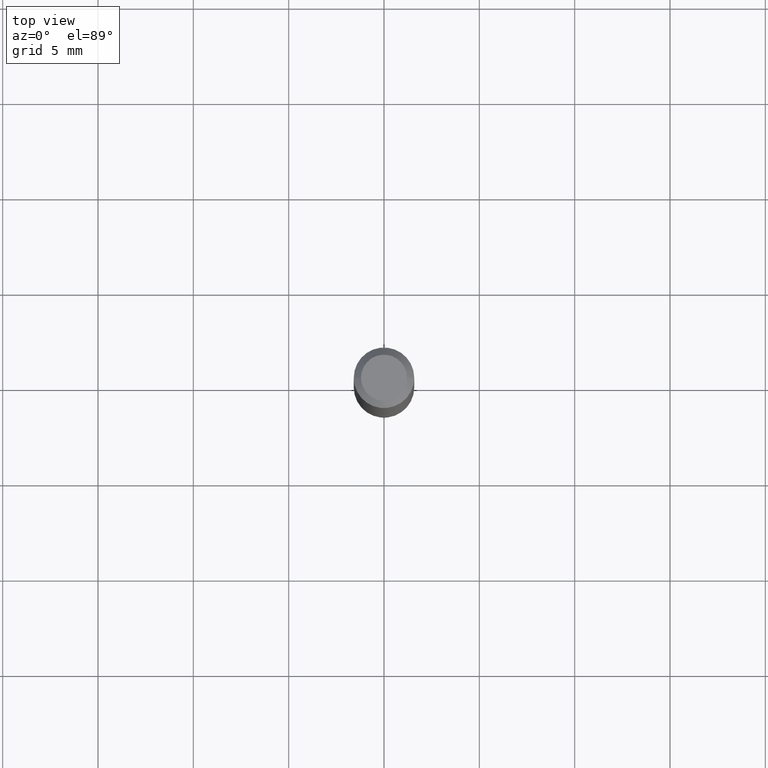
[diagram: clean part render]
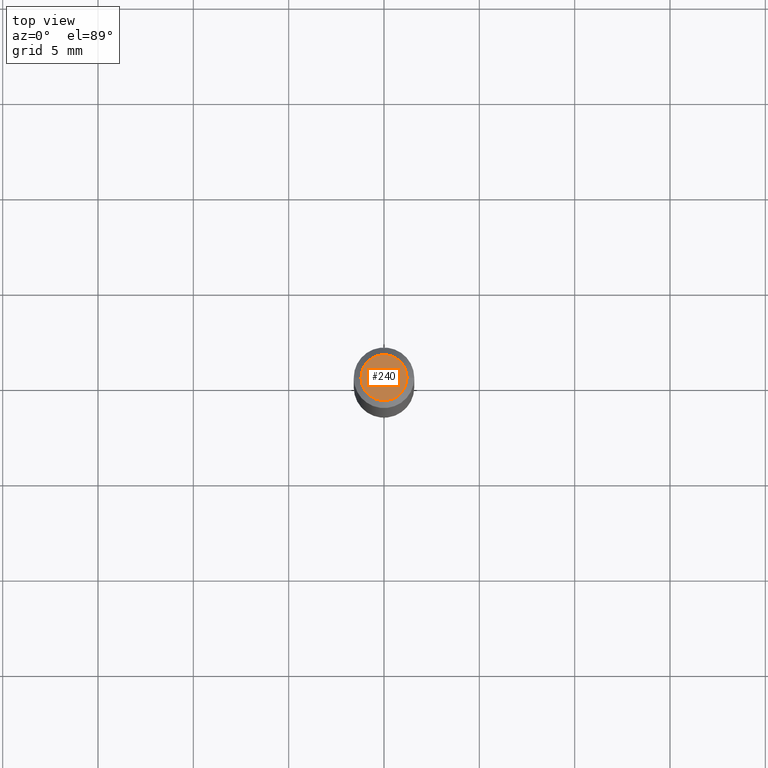
[diagram: same view with one face highlighted and labeled with its STEP entity id]
A machine part, top view. The second image highlights one B-rep face of the part: STEP entity #240.
In plain terms, the highlighted planar face has unit normal (0, -0, -1).
Its self-contained STEP definition (entity closure, byte-faithful):
#1 = EDGE_CURVE ( 'NONE', #264, #388, #477, .T. ) ;
#10 = EDGE_LOOP ( 'NONE', ( #348, #248 ) ) ;
#23 = DIRECTION ( 'NONE',  ( 2.438088387897960049E-29, -3.491481338843145188E-15, -1.000000000000000000 ) ) ;
#31 = CIRCLE ( 'NONE', #395, 0.04750000000000000749 ) ;
#34 = CARTESIAN_POINT ( 'NONE',  ( 3.316907271900976589E-16, 0.04750000000000000749, -2.925296391183627249E-17 ) ) ;
#87 = AXIS2_PLACEMENT_3D ( 'NONE', #34, #23, #185 ) ;
#111 = CARTESIAN_POINT ( 'NONE',  ( 0.04750000000000000749, -4.035134999187568762E-16, 2.731847993664288856E-16 ) ) ;
#133 = AXIS2_PLACEMENT_3D ( 'NONE', #246, #166, #360 ) ;
#155 = DIRECTION ( 'NONE',  ( -2.445468806185136597E-29, 3.491481338843145583E-15, 1.000000000000000000 ) ) ;
#166 = DIRECTION ( 'NONE',  ( -2.445468806185136597E-29, 3.491481338843145583E-15, 1.000000000000000000 ) ) ;
#185 = DIRECTION ( 'NONE',  ( -1.000000000000000000, 6.982962677686265922E-15, -4.876176775795935793E-29 ) ) ;
#234 = CARTESIAN_POINT ( 'NONE',  ( -6.680649051745406845E-45, 9.538196290434862081E-31, 2.731847993664263218E-16 ) ) ;
#240 = ADVANCED_FACE ( 'NONE', ( #464 ), #462, .F. ) ;
#246 = CARTESIAN_POINT ( 'NONE',  ( -6.680649051745406845E-45, 9.538196290434862081E-31, 2.731847993664263218E-16 ) ) ;
#248 = ORIENTED_EDGE ( 'NONE', *, *, #1, .T. ) ;
#264 = VERTEX_POINT ( 'NONE', #111 ) ;
#348 = ORIENTED_EDGE ( 'NONE', *, *, #376, .T. ) ;
#360 = DIRECTION ( 'NONE',  ( 1.000000000000000000, -6.982962677686266711E-15, 4.852736867747365086E-29 ) ) ;
#376 = EDGE_CURVE ( 'NONE', #388, #264, #31, .T. ) ;
#383 = DIRECTION ( 'NONE',  ( 1.000000000000000000, -6.982962677686266711E-15, 4.852736867747365086E-29 ) ) ;
#388 = VERTEX_POINT ( 'NONE', #515 ) ;
#395 = AXIS2_PLACEMENT_3D ( 'NONE', #234, #155, #383 ) ;
#462 = PLANE ( 'NONE',  #87 ) ;
#464 = FACE_OUTER_BOUND ( 'NONE', #10, .T. ) ;
#477 = CIRCLE ( 'NONE', #133, 0.04750000000000000749 ) ;
#515 = CARTESIAN_POINT ( 'NONE',  ( -0.04750000000000000749, 3.578768372314221353E-16, 2.731847993664239060E-16 ) ) ;